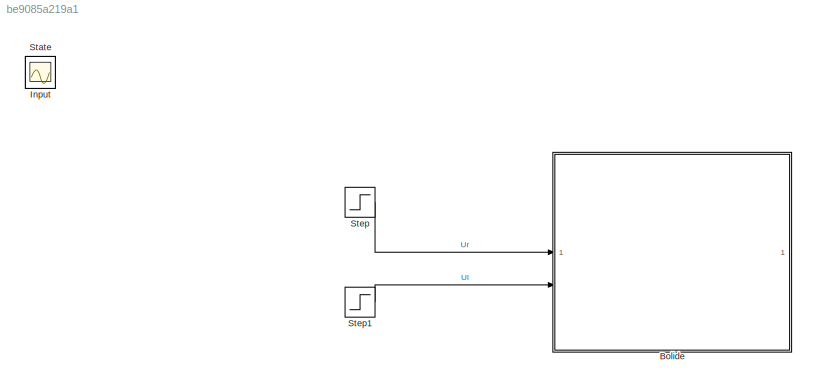
MODEL slx_be9085a219a1
KIND model
CONFIG AbsTol = auto
CONFIG EnableMultiTasking = off
CONFIG FixedStep = auto
CONFIG MaxStep = auto
CONFIG MinStep = auto
CONFIG RelTol = 1e-3
CONFIG SampleTimeConstraint = Unconstrained
CONFIG SolverName = VariableStepAuto
CONFIG StartTime = 0.0
CONFIG StopTime = 5.0
WORKSPACE source: MATLAB code (in-file)
WORKSPACE mw = 0.1
WORKSPACE mb = 1
WORKSPACE M = 1.2
WORKSPACE rho = 0.07
WORKSPACE l = 0.02
WORKSPACE d = 0.015
WORKSPACE L = 0.05
WORKSPACE R = 1e6  (= 1000000)
WORKSPACE k = 2.63e4  (= 26300)
WORKSPACE Iwy = 2.45e-4  (= 0.000245)
WORKSPACE Ipsi = 1.53e-2  (= 0.0153)
WORKSPACE beta = (M + 2*Iwy/rho^2)  (= 1.3)
WORKSPACE gamma = Ipsi + mb*d^2  (= 0.015525)
WORKSPACE Ubar = 12
WORKSPACE Urbar = Ubar/2  (= 6)
WORKSPACE Ulbar = Ubar/2  (= 6)
WORKSPACE ubar = rho/2/k*Ubar  (= 1.5969581749e-05)
WORKSPACE psibar = 0
WORKSPACE vbar = 0
WORKSPACE irbar = 0
WORKSPACE ilbar = 0
WORKSPACE code: statebar = [ubar; psibar; vbar; irbar; ilbar];
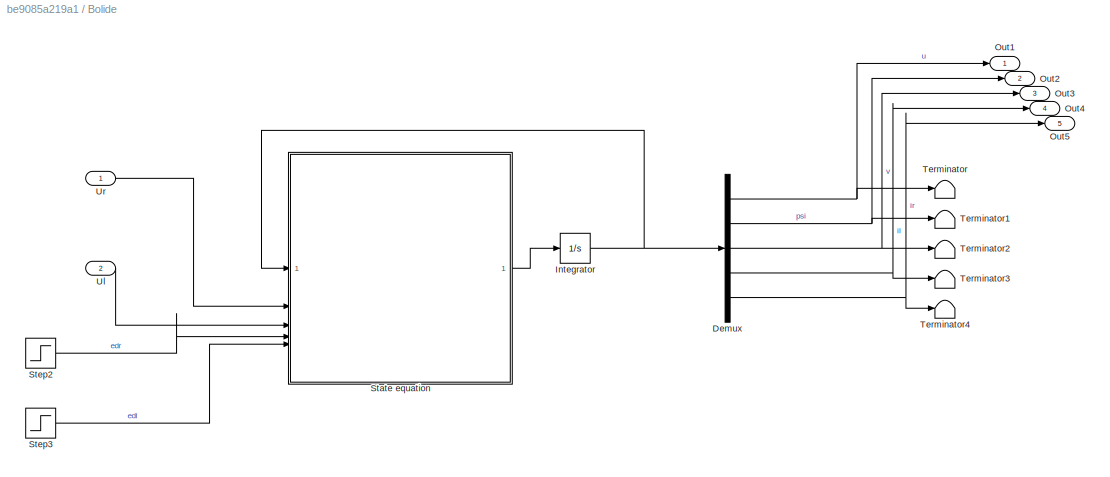
BLOCK [SubSystem] Bolide
BLOCK [Demux] Bolide/Demux
  Outputs = 5
BLOCK [Integrator] Bolide/Integrator
  InitialCondition = statebar
BLOCK [Outport] Bolide/Out1
BLOCK [Outport] Bolide/Out2
  Port = 2
BLOCK [Outport] Bolide/Out3
  Port = 3
BLOCK [Outport] Bolide/Out4
  Port = 4
BLOCK [Outport] Bolide/Out5
  Port = 5
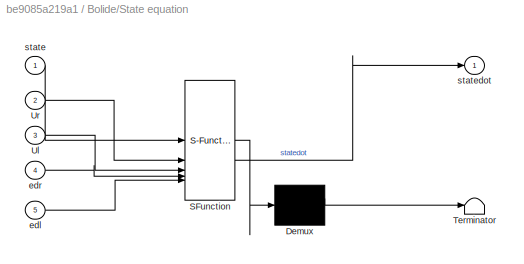
BLOCK [SubSystem] Bolide/State equation
  ErrorFcn = Stateflow.Translate.translate
  PermitHierarchicalResolution = ExplicitOnly
  SFBlockType = MATLAB Function
  TreatAsAtomicUnit = on
BLOCK [Demux] Bolide/State equation/ Demux 
  Outputs = 1
BLOCK [S-Function] Bolide/State equation/ SFunction 
  EnableBusSupport = on
  FunctionName = sf_sfun
  Parameters = Ipsi,Iwy,L,M,R,beta,d,gamma,k,l,mb,rho
  PortCounts = [5 2]
  SFcnIsStateOwnerBlock = off
  SFunctionDeploymentMode = off
  Tag = Stateflow S-Function 2
BLOCK [Terminator] Bolide/State equation/ Terminator 
BLOCK [Inport] Bolide/State equation/Ul
  Port = 3
BLOCK [Inport] Bolide/State equation/Ur
  Port = 2
BLOCK [Inport] Bolide/State equation/edl
  Port = 5
BLOCK [Inport] Bolide/State equation/edr
  Port = 4
BLOCK [Inport] Bolide/State equation/state
BLOCK [Outport] Bolide/State equation/statedot
BLOCK [Step] Bolide/Step2
  After = 0
  SampleTime = 0
BLOCK [Step] Bolide/Step3
  After = 0
  SampleTime = 0
BLOCK [Terminator] Bolide/Terminator
BLOCK [Terminator] Bolide/Terminator1
BLOCK [Terminator] Bolide/Terminator2
BLOCK [Terminator] Bolide/Terminator3
BLOCK [Terminator] Bolide/Terminator4
BLOCK [Inport] Bolide/Ul
  Port = 2
BLOCK [Inport] Bolide/Ur
BLOCK [Scope] Input
  Floating = off
  IOType = viewer
  NumInputPorts = 1
  ScopeSpecificationString = Simulink.scopes.TimeScopeBlockCfg('CurrentConfiguration', extmgr.ConfigurationSet(extmgr.Configuration('Core','General UI',true),extmgr.Configuration('Core','Source UI',true),extmgr.Configuration('Sources','WiredSimulink',true,'DataLoggingVariableName','ScopeData1'),extmgr.Configuration('Visuals','Time Domain',true,'SerializedDisplays',{struct('MinYLimReal','5.8875','MaxYLimReal','6.0125','YLabelR...<+3465ch>
BLOCK [Scope] State
  Floating = off
  IOType = viewer
  NumInputPorts = 1
  ScopeSpecificationString = Simulink.scopes.TimeScopeBlockCfg('CurrentConfiguration', extmgr.ConfigurationSet(extmgr.Configuration('Core','General UI',true),extmgr.Configuration('Core','Source UI',true),extmgr.Configuration('Sources','WiredSimulink',true),extmgr.Configuration('Visuals','Time Domain',true,'SerializedDisplays',{struct('MinYLimReal','0.00001537','MaxYLimReal','0.00001604','YLabelReal','','MinYLimMag','0.0000153...<+3410ch>
BLOCK [Step] Step
  After = Urbar - 0.1
  Before = Urbar
  SampleTime = 0
BLOCK [Step] Step1
  After = Ulbar - 0.3
  Before = Ulbar
  SampleTime = 0
  Time = 3
NET Bolide/Demux:1 -> Bolide/Out1:1, Bolide/Terminator:1
NET Bolide/Demux:2 -> Bolide/Out2:1, Bolide/Terminator1:1
NET Bolide/Demux:3 -> Bolide/Out3:1, Bolide/Terminator2:1
NET Bolide/Demux:4 -> Bolide/Out4:1, Bolide/Terminator3:1
NET Bolide/Demux:5 -> Bolide/Out5:1, Bolide/Terminator4:1
NET Bolide/Integrator:1 -> Bolide/Demux:1, Bolide/State equation:1
LINE Bolide/State equation:1 -> Bolide/Integrator:1
LINE Bolide/Step2:1 -> Bolide/State equation:4
LINE Bolide/Step3:1 -> Bolide/State equation:5
LINE Bolide/Ul:1 -> Bolide/State equation:3
LINE Bolide/Ur:1 -> Bolide/State equation:2
LINE Step1:1 -> Bolide:2
LINE Step:1 -> Bolide:1
note: NET lines group one-source signal fan-out (src -> all destinations, sorted); 1:1 wires keep LINE
CHART Bolide/State equation states=1 transitions=1
  STATE_LABEL 'eML_blk_kernel()'
  STATE_LABEL 'SCRIPT:\nfunction statedot = fcn(state,Ur, Ul, edr, edl, M, rho, l, Iwy, Ipsi, d, L, R, k, mb, beta, gamma)\n% ed est l\'entrée de perturbation, != d (distance AC)\n% Model parameters M,Ipsi,d,L,R,k defined in "Model Explorer/Matlab Code"\n\nu = state(1);\npsi = state(2);\nv = state(3); % psidot\nir = state(4); % Intensité à gauche\nil = state(5);\n\nis = ir + il; % Somme\nid = ir - il; % Diff\nUs = Ur + Ul + e...<+314ch>'
CHART  states=0 transitions=0
